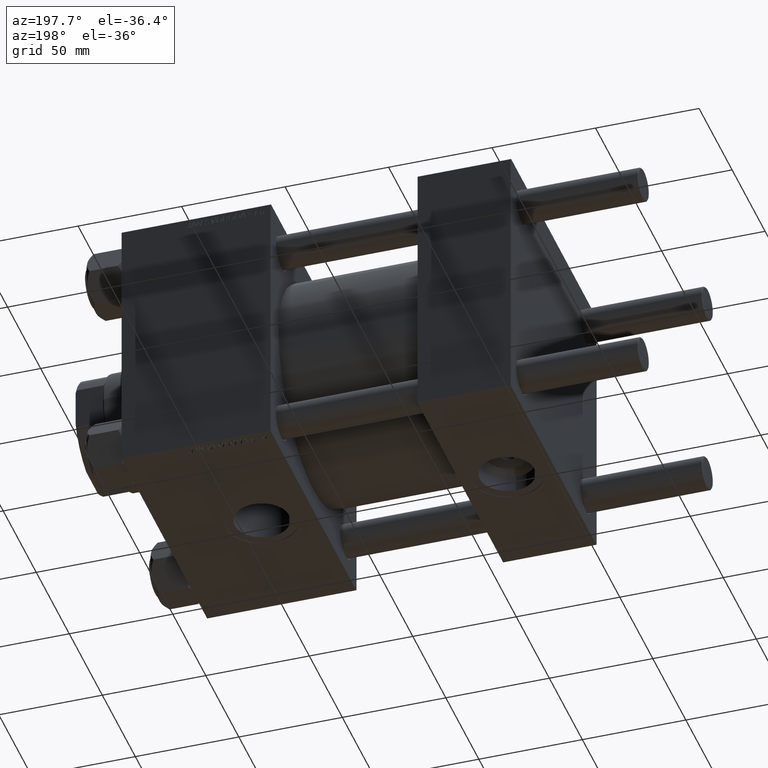
[diagram: clean part render]
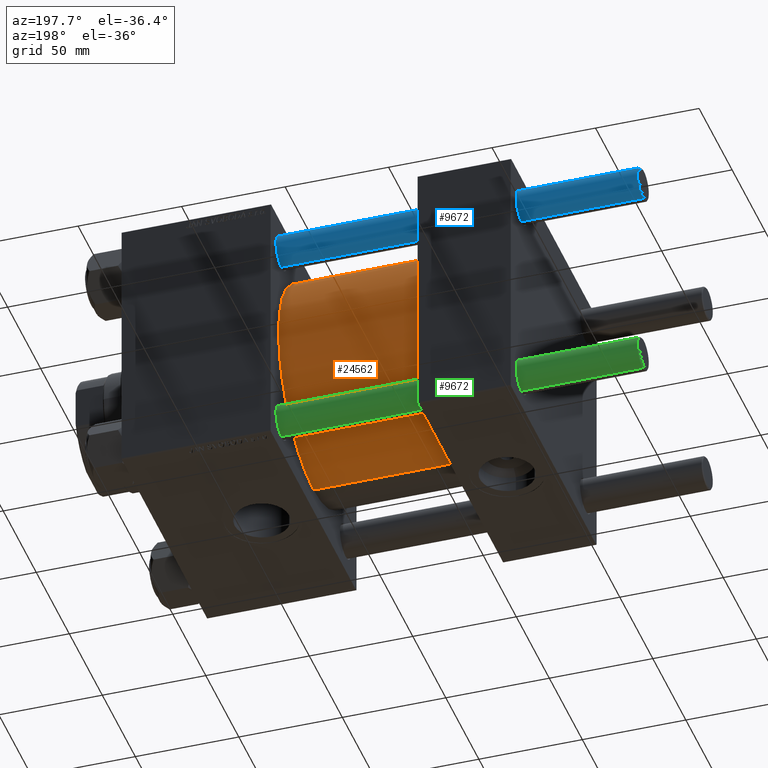
[diagram: same view with three faces highlighted in distinct colors, each labeled with its STEP entity id]
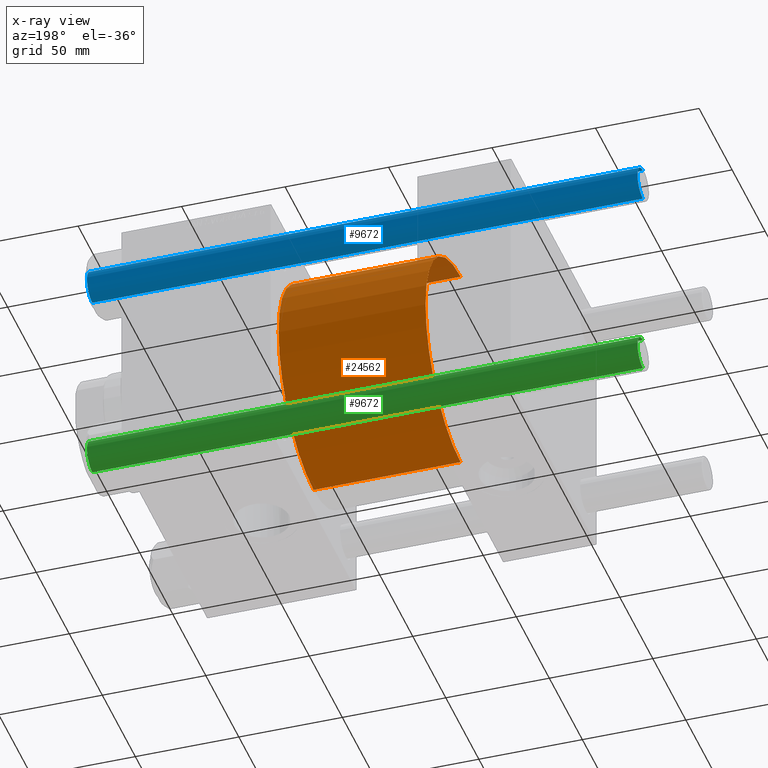
[diagram: x-ray of the same camera — body ghosted, the three highlighted faces saturated]
A machine part, auxiliary view with three faces highlighted in distinct colors.
The next image is the same camera in x-ray (body ghosted, the three faces saturated) — at least one of them is partly hidden behind the body in this view.
Their STEP definitions:

[orange] entity #24562 — the highlighted cylindrical surface (partial cylindrical patch) has radius 53 mm, axis along (-1, -0, -0).
#408 = EDGE_CURVE ( 'NONE', #44487, #25930, #44436, .T. ) ;
#972 = FACE_OUTER_BOUND ( 'NONE', #10526, .T. ) ;
#1756 = DIRECTION ( 'NONE',  ( -1.000000000000000000, -0.000000000000000000, -0.000000000000000000 ) ) ;
#1994 = AXIS2_PLACEMENT_3D ( 'NONE', #8881, #36244, #40076 ) ;
#3644 = CARTESIAN_POINT ( 'NONE',  ( 45.00000000000000000, 6.490628035480973107E-15, -53.00000000000000711 ) ) ;
#6021 = ORIENTED_EDGE ( 'NONE', *, *, #26236, .T. ) ;
#6657 = CARTESIAN_POINT ( 'NONE',  ( 45.00000000000000000, 0.000000000000000000, 0.000000000000000000 ) ) ;
#7804 = CARTESIAN_POINT ( 'NONE',  ( 115.9999999999999858, 6.490628035480973107E-15, -53.00000000000000711 ) ) ;
#8881 = CARTESIAN_POINT ( 'NONE',  ( 115.9999999999999858, 0.000000000000000000, 0.000000000000000000 ) ) ;
#10526 = EDGE_LOOP ( 'NONE', ( #10531, #14422, #6021, #13945 ) ) ;
#10531 = ORIENTED_EDGE ( 'NONE', *, *, #26889, .F. ) ;
#13945 = ORIENTED_EDGE ( 'NONE', *, *, #43037, .F. ) ;
#14422 = ORIENTED_EDGE ( 'NONE', *, *, #408, .T. ) ;
#20436 = LINE ( 'NONE', #28348, #29832 ) ;
#20809 = AXIS2_PLACEMENT_3D ( 'NONE', #6657, #42188, #26078 ) ;
#21646 = CIRCLE ( 'NONE', #50221, 53.00000000000000711 ) ;
#24428 = VECTOR ( 'NONE', #1756, 1000.000000000000000 ) ;
#24562 = ADVANCED_FACE ( 'NONE', ( #972 ), #28578, .T. ) ;
#25930 = VERTEX_POINT ( 'NONE', #3644 ) ;
#26078 = DIRECTION ( 'NONE',  ( 0.000000000000000000, 0.000000000000000000, 1.000000000000000000 ) ) ;
#26206 = DIRECTION ( 'NONE',  ( 0.000000000000000000, 0.000000000000000000, -1.000000000000000000 ) ) ;
#26236 = EDGE_CURVE ( 'NONE', #25930, #45447, #32239, .T. ) ;
#26889 = EDGE_CURVE ( 'NONE', #44487, #49210, #21646, .T. ) ;
#28114 = CARTESIAN_POINT ( 'NONE',  ( 115.9999999999999858, 0.000000000000000000, 53.00000000000000711 ) ) ;
#28348 = CARTESIAN_POINT ( 'NONE',  ( 115.9999999999999858, 0.000000000000000000, 53.00000000000000711 ) ) ;
#28578 = CYLINDRICAL_SURFACE ( 'NONE', #1994, 53.00000000000000711 ) ;
#29832 = VECTOR ( 'NONE', #43933, 1000.000000000000000 ) ;
#32091 = CARTESIAN_POINT ( 'NONE',  ( 45.00000000000000000, 0.000000000000000000, 53.00000000000000711 ) ) ;
#32239 = CIRCLE ( 'NONE', #20809, 53.00000000000000711 ) ;
#36244 = DIRECTION ( 'NONE',  ( -1.000000000000000000, -0.000000000000000000, -0.000000000000000000 ) ) ;
#40076 = DIRECTION ( 'NONE',  ( 0.000000000000000000, 0.000000000000000000, 1.000000000000000000 ) ) ;
#42188 = DIRECTION ( 'NONE',  ( 1.000000000000000000, -0.000000000000000000, 0.000000000000000000 ) ) ;
#43037 = EDGE_CURVE ( 'NONE', #49210, #45447, #20436, .T. ) ;
#43933 = DIRECTION ( 'NONE',  ( -1.000000000000000000, -0.000000000000000000, -0.000000000000000000 ) ) ;
#44436 = LINE ( 'NONE', #49029, #24428 ) ;
#44487 = VERTEX_POINT ( 'NONE', #7804 ) ;
#45447 = VERTEX_POINT ( 'NONE', #32091 ) ;
#45885 = CARTESIAN_POINT ( 'NONE',  ( 115.9999999999999858, 0.000000000000000000, 0.000000000000000000 ) ) ;
#49029 = CARTESIAN_POINT ( 'NONE',  ( 115.9999999999999858, 6.490628035480973107E-15, -53.00000000000000711 ) ) ;
#49210 = VERTEX_POINT ( 'NONE', #28114 ) ;
#49987 = DIRECTION ( 'NONE',  ( 1.000000000000000000, 0.000000000000000000, 0.000000000000000000 ) ) ;
#50221 = AXIS2_PLACEMENT_3D ( 'NONE', #45885, #49987, #26206 ) ;

[blue] entity #9672 — the highlighted cylindrical surface (edge-blend (fillet) strip) has radius 8 mm, axis along (-1, -0, -0).
#1270 = CARTESIAN_POINT ( 'NONE',  ( 0.000000000000000000, 0.000000000000000000, 266.5000000000000568 ) ) ;
#1634 = CARTESIAN_POINT ( 'NONE',  ( -8.000000000000000000, 0.000000000000000000, 0.5000000000000559552 ) ) ;
#4192 = VERTEX_POINT ( 'NONE', #18998 ) ;
#5263 = LINE ( 'NONE', #17023, #10665 ) ;
#5591 = LINE ( 'NONE', #40358, #8686 ) ;
#5632 = ORIENTED_EDGE ( 'NONE', *, *, #29999, .F. ) ;
#6131 = AXIS2_PLACEMENT_3D ( 'NONE', #18475, #10534, #15402 ) ;
#8214 = DIRECTION ( 'NONE',  ( -0.000000000000000000, -0.000000000000000000, -1.000000000000000000 ) ) ;
#8686 = VECTOR ( 'NONE', #48533, 1000.000000000000000 ) ;
#9672 = ADVANCED_FACE ( 'NONE', ( #35315 ), #20224, .T. ) ;
#10534 = DIRECTION ( 'NONE',  ( -0.000000000000000000, -0.000000000000000000, 1.000000000000000000 ) ) ;
#10665 = VECTOR ( 'NONE', #28783, 1000.000000000000000 ) ;
#11303 = EDGE_CURVE ( 'NONE', #4192, #46482, #5263, .T. ) ;
#13051 = ORIENTED_EDGE ( 'NONE', *, *, #25931, .T. ) ;
#15402 = DIRECTION ( 'NONE',  ( 1.000000000000000000, 0.000000000000000000, 0.000000000000000000 ) ) ;
#16132 = DIRECTION ( 'NONE',  ( -1.000000000000000000, 0.000000000000000000, 0.000000000000000000 ) ) ;
#17023 = CARTESIAN_POINT ( 'NONE',  ( 8.000000000000000000, 9.797174393178825657E-16, 267.0000000000000000 ) ) ;
#18475 = CARTESIAN_POINT ( 'NONE',  ( 0.000000000000000000, 0.000000000000000000, 0.5000000000000559552 ) ) ;
#18998 = CARTESIAN_POINT ( 'NONE',  ( 8.000000000000000000, 9.797174393178825657E-16, 266.5000000000000568 ) ) ;
#20224 = CYLINDRICAL_SURFACE ( 'NONE', #48268, 8.000000000000000000 ) ;
#20706 = CIRCLE ( 'NONE', #49267, 8.000000000000000000 ) ;
#22348 = EDGE_LOOP ( 'NONE', ( #30692, #40907, #13051, #5632 ) ) ;
#23489 = EDGE_CURVE ( 'NONE', #24211, #4192, #20706, .T. ) ;
#24023 = DIRECTION ( 'NONE',  ( 0.000000000000000000, 0.000000000000000000, -1.000000000000000000 ) ) ;
#24051 = CARTESIAN_POINT ( 'NONE',  ( 0.000000000000000000, 0.000000000000000000, 267.0000000000000000 ) ) ;
#24211 = VERTEX_POINT ( 'NONE', #40131 ) ;
#25931 = EDGE_CURVE ( 'NONE', #46482, #35699, #40401, .T. ) ;
#28783 = DIRECTION ( 'NONE',  ( -0.000000000000000000, -0.000000000000000000, -1.000000000000000000 ) ) ;
#29999 = EDGE_CURVE ( 'NONE', #24211, #35699, #5591, .T. ) ;
#30692 = ORIENTED_EDGE ( 'NONE', *, *, #23489, .T. ) ;
#35315 = FACE_OUTER_BOUND ( 'NONE', #22348, .T. ) ;
#35699 = VERTEX_POINT ( 'NONE', #1634 ) ;
#39871 = DIRECTION ( 'NONE',  ( 1.000000000000000000, 0.000000000000000000, 0.000000000000000000 ) ) ;
#40131 = CARTESIAN_POINT ( 'NONE',  ( -8.000000000000000000, 0.000000000000000000, 266.5000000000000568 ) ) ;
#40358 = CARTESIAN_POINT ( 'NONE',  ( -8.000000000000000000, 0.000000000000000000, 267.0000000000000000 ) ) ;
#40401 = CIRCLE ( 'NONE', #6131, 8.000000000000000000 ) ;
#40907 = ORIENTED_EDGE ( 'NONE', *, *, #11303, .T. ) ;
#44159 = CARTESIAN_POINT ( 'NONE',  ( 8.000000000000000000, 9.797174393178825657E-16, 0.5000000000000559552 ) ) ;
#46482 = VERTEX_POINT ( 'NONE', #44159 ) ;
#48268 = AXIS2_PLACEMENT_3D ( 'NONE', #24051, #8214, #16132 ) ;
#48533 = DIRECTION ( 'NONE',  ( -0.000000000000000000, -0.000000000000000000, -1.000000000000000000 ) ) ;
#49267 = AXIS2_PLACEMENT_3D ( 'NONE', #1270, #24023, #39871 ) ;

[green] entity #9672 — the highlighted cylindrical surface (edge-blend (fillet) strip) has radius 8 mm, axis along (1, 0, -0).
#1270 = CARTESIAN_POINT ( 'NONE',  ( 0.000000000000000000, 0.000000000000000000, 266.5000000000000568 ) ) ;
#1634 = CARTESIAN_POINT ( 'NONE',  ( -8.000000000000000000, 0.000000000000000000, 0.5000000000000559552 ) ) ;
#4192 = VERTEX_POINT ( 'NONE', #18998 ) ;
#5263 = LINE ( 'NONE', #17023, #10665 ) ;
#5591 = LINE ( 'NONE', #40358, #8686 ) ;
#5632 = ORIENTED_EDGE ( 'NONE', *, *, #29999, .F. ) ;
#6131 = AXIS2_PLACEMENT_3D ( 'NONE', #18475, #10534, #15402 ) ;
#8214 = DIRECTION ( 'NONE',  ( -0.000000000000000000, -0.000000000000000000, -1.000000000000000000 ) ) ;
#8686 = VECTOR ( 'NONE', #48533, 1000.000000000000000 ) ;
#9672 = ADVANCED_FACE ( 'NONE', ( #35315 ), #20224, .T. ) ;
#10534 = DIRECTION ( 'NONE',  ( -0.000000000000000000, -0.000000000000000000, 1.000000000000000000 ) ) ;
#10665 = VECTOR ( 'NONE', #28783, 1000.000000000000000 ) ;
#11303 = EDGE_CURVE ( 'NONE', #4192, #46482, #5263, .T. ) ;
#13051 = ORIENTED_EDGE ( 'NONE', *, *, #25931, .T. ) ;
#15402 = DIRECTION ( 'NONE',  ( 1.000000000000000000, 0.000000000000000000, 0.000000000000000000 ) ) ;
#16132 = DIRECTION ( 'NONE',  ( -1.000000000000000000, 0.000000000000000000, 0.000000000000000000 ) ) ;
#17023 = CARTESIAN_POINT ( 'NONE',  ( 8.000000000000000000, 9.797174393178825657E-16, 267.0000000000000000 ) ) ;
#18475 = CARTESIAN_POINT ( 'NONE',  ( 0.000000000000000000, 0.000000000000000000, 0.5000000000000559552 ) ) ;
#18998 = CARTESIAN_POINT ( 'NONE',  ( 8.000000000000000000, 9.797174393178825657E-16, 266.5000000000000568 ) ) ;
#20224 = CYLINDRICAL_SURFACE ( 'NONE', #48268, 8.000000000000000000 ) ;
#20706 = CIRCLE ( 'NONE', #49267, 8.000000000000000000 ) ;
#22348 = EDGE_LOOP ( 'NONE', ( #30692, #40907, #13051, #5632 ) ) ;
#23489 = EDGE_CURVE ( 'NONE', #24211, #4192, #20706, .T. ) ;
#24023 = DIRECTION ( 'NONE',  ( 0.000000000000000000, 0.000000000000000000, -1.000000000000000000 ) ) ;
#24051 = CARTESIAN_POINT ( 'NONE',  ( 0.000000000000000000, 0.000000000000000000, 267.0000000000000000 ) ) ;
#24211 = VERTEX_POINT ( 'NONE', #40131 ) ;
#25931 = EDGE_CURVE ( 'NONE', #46482, #35699, #40401, .T. ) ;
#28783 = DIRECTION ( 'NONE',  ( -0.000000000000000000, -0.000000000000000000, -1.000000000000000000 ) ) ;
#29999 = EDGE_CURVE ( 'NONE', #24211, #35699, #5591, .T. ) ;
#30692 = ORIENTED_EDGE ( 'NONE', *, *, #23489, .T. ) ;
#35315 = FACE_OUTER_BOUND ( 'NONE', #22348, .T. ) ;
#35699 = VERTEX_POINT ( 'NONE', #1634 ) ;
#39871 = DIRECTION ( 'NONE',  ( 1.000000000000000000, 0.000000000000000000, 0.000000000000000000 ) ) ;
#40131 = CARTESIAN_POINT ( 'NONE',  ( -8.000000000000000000, 0.000000000000000000, 266.5000000000000568 ) ) ;
#40358 = CARTESIAN_POINT ( 'NONE',  ( -8.000000000000000000, 0.000000000000000000, 267.0000000000000000 ) ) ;
#40401 = CIRCLE ( 'NONE', #6131, 8.000000000000000000 ) ;
#40907 = ORIENTED_EDGE ( 'NONE', *, *, #11303, .T. ) ;
#44159 = CARTESIAN_POINT ( 'NONE',  ( 8.000000000000000000, 9.797174393178825657E-16, 0.5000000000000559552 ) ) ;
#46482 = VERTEX_POINT ( 'NONE', #44159 ) ;
#48268 = AXIS2_PLACEMENT_3D ( 'NONE', #24051, #8214, #16132 ) ;
#48533 = DIRECTION ( 'NONE',  ( -0.000000000000000000, -0.000000000000000000, -1.000000000000000000 ) ) ;
#49267 = AXIS2_PLACEMENT_3D ( 'NONE', #1270, #24023, #39871 ) ;